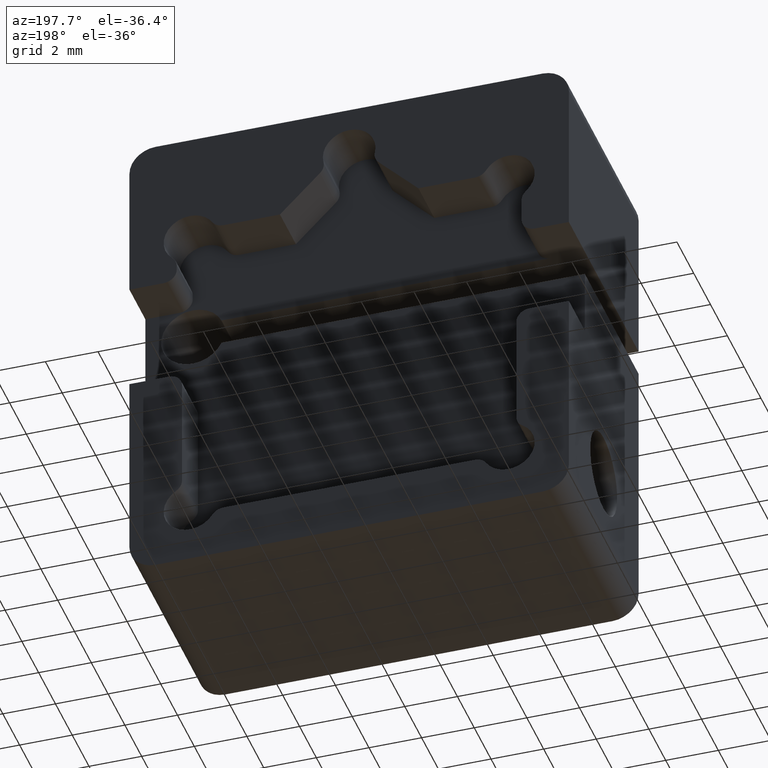
[diagram: clean part render]
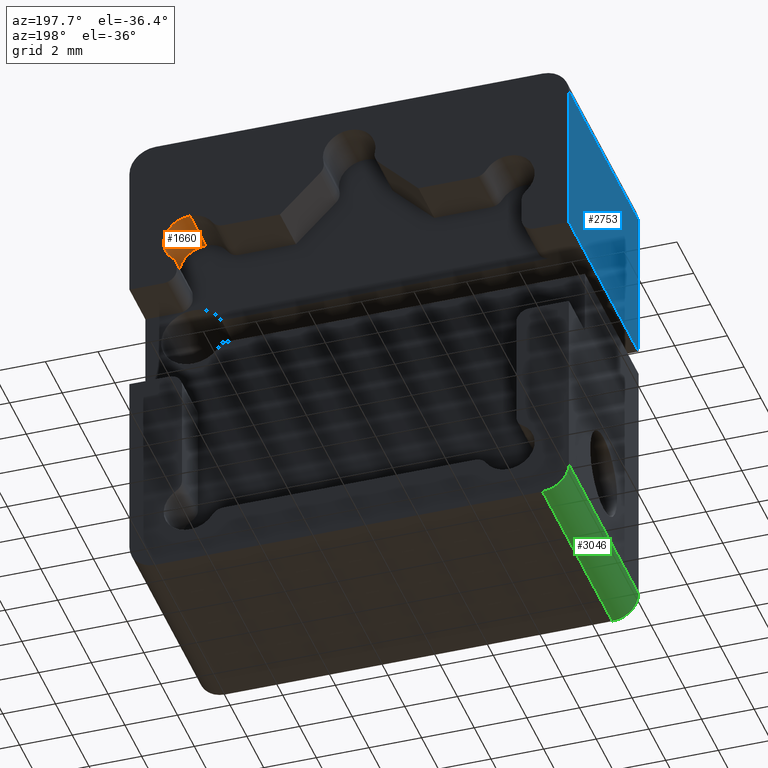
[diagram: same view with three faces highlighted in distinct colors, each labeled with its STEP entity id]
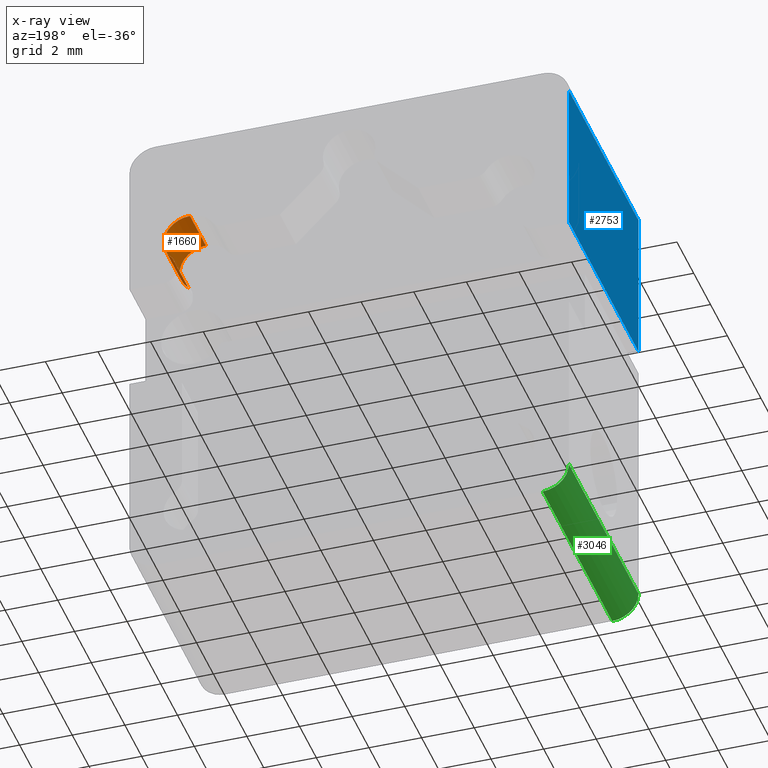
[diagram: x-ray of the same camera — body ghosted, the three highlighted faces saturated]
A machine part, auxiliary view with three faces highlighted in distinct colors.
The next image is the same camera in x-ray (body ghosted, the three faces saturated) — at least one of them is partly hidden behind the body in this view.
Their STEP definitions:

[orange] entity #1660 — the highlighted cylindrical surface (edge-blend (fillet) strip) has radius 1 mm, axis along (0, 1, 0).
#40 = DIRECTION ( 'NONE',  ( -0.000000000000000000, -1.000000000000000000, -0.000000000000000000 ) ) ;
#119 = CARTESIAN_POINT ( 'NONE',  ( 6.050000000000002487, 3.571572875253809620, 5.999999999999997335 ) ) ;
#208 = VERTEX_POINT ( 'NONE', #776 ) ;
#221 = EDGE_CURVE ( 'NONE', #208, #2995, #2944, .T. ) ;
#237 = CARTESIAN_POINT ( 'NONE',  ( 6.050000000000002487, 3.571572875253809620, 4.999999999999997335 ) ) ;
#253 = CYLINDRICAL_SURFACE ( 'NONE', #1685, 1.000000000000000000 ) ;
#311 = AXIS2_PLACEMENT_3D ( 'NONE', #1224, #40, #2606 ) ;
#324 = DIRECTION ( 'NONE',  ( 0.000000000000000000, 1.000000000000000000, 0.000000000000000000 ) ) ;
#326 = ORIENTED_EDGE ( 'NONE', *, *, #466, .T. ) ;
#340 = ORIENTED_EDGE ( 'NONE', *, *, #221, .T. ) ;
#466 = EDGE_CURVE ( 'NONE', #2995, #1032, #2492, .T. ) ;
#486 = DIRECTION ( 'NONE',  ( -0.000000000000000000, 1.000000000000000000, -0.000000000000000000 ) ) ;
#556 = CARTESIAN_POINT ( 'NONE',  ( 6.050000000000002487, 6.400000000000000355, 5.999999999999997335 ) ) ;
#709 = VECTOR ( 'NONE', #1758, 1000.000000000000000 ) ;
#776 = CARTESIAN_POINT ( 'NONE',  ( 6.716666666666666785, 8.300000000000000711, 4.254644007500066216 ) ) ;
#922 = EDGE_CURVE ( 'NONE', #1748, #208, #2042, .T. ) ;
#971 = FACE_OUTER_BOUND ( 'NONE', #1280, .T. ) ;
#1032 = VERTEX_POINT ( 'NONE', #556 ) ;
#1089 = CARTESIAN_POINT ( 'NONE',  ( 6.716666666666666785, 6.400000000000000355, 4.254644007500066216 ) ) ;
#1224 = CARTESIAN_POINT ( 'NONE',  ( 6.050000000000002487, 6.400000000000000355, 4.999999999999997335 ) ) ;
#1280 = EDGE_LOOP ( 'NONE', ( #326, #1393, #3059, #340 ) ) ;
#1292 = LINE ( 'NONE', #119, #1994 ) ;
#1393 = ORIENTED_EDGE ( 'NONE', *, *, #2357, .T. ) ;
#1487 = AXIS2_PLACEMENT_3D ( 'NONE', #2249, #324, #1958 ) ;
#1654 = CARTESIAN_POINT ( 'NONE',  ( 6.050000000000002487, 8.300000000000000711, 5.999999999999997335 ) ) ;
#1660 = ADVANCED_FACE ( 'NONE', ( #971 ), #253, .F. ) ;
#1685 = AXIS2_PLACEMENT_3D ( 'NONE', #237, #486, #2115 ) ;
#1748 = VERTEX_POINT ( 'NONE', #1654 ) ;
#1758 = DIRECTION ( 'NONE',  ( 0.000000000000000000, -1.000000000000000000, 0.000000000000000000 ) ) ;
#1958 = DIRECTION ( 'NONE',  ( 0.000000000000000000, 0.000000000000000000, 1.000000000000000000 ) ) ;
#1994 = VECTOR ( 'NONE', #2803, 1000.000000000000000 ) ;
#2042 = CIRCLE ( 'NONE', #1487, 1.000000000000000000 ) ;
#2115 = DIRECTION ( 'NONE',  ( 0.000000000000000000, 0.000000000000000000, 1.000000000000000000 ) ) ;
#2249 = CARTESIAN_POINT ( 'NONE',  ( 6.050000000000002487, 8.300000000000000711, 4.999999999999997335 ) ) ;
#2357 = EDGE_CURVE ( 'NONE', #1032, #1748, #1292, .T. ) ;
#2492 = CIRCLE ( 'NONE', #311, 1.000000000000000000 ) ;
#2606 = DIRECTION ( 'NONE',  ( 0.000000000000000000, 0.000000000000000000, 1.000000000000000000 ) ) ;
#2695 = CARTESIAN_POINT ( 'NONE',  ( 6.716666666666666785, 3.571572875253809620, 4.254644007500066216 ) ) ;
#2803 = DIRECTION ( 'NONE',  ( -0.000000000000000000, 1.000000000000000000, -0.000000000000000000 ) ) ;
#2944 = LINE ( 'NONE', #2695, #709 ) ;
#2995 = VERTEX_POINT ( 'NONE', #1089 ) ;
#3059 = ORIENTED_EDGE ( 'NONE', *, *, #922, .T. ) ;

[blue] entity #2753 — the highlighted planar face has unit normal (1, 0, -0).
#59 = ORIENTED_EDGE ( 'NONE', *, *, #2719, .T. ) ;
#162 = VERTEX_POINT ( 'NONE', #1281 ) ;
#314 = DIRECTION ( 'NONE',  ( 1.845450506358305325E-16, 0.000000000000000000, 1.000000000000000000 ) ) ;
#336 = DIRECTION ( 'NONE',  ( 1.845450506358305325E-16, 0.000000000000000000, 1.000000000000000000 ) ) ;
#344 = DIRECTION ( 'NONE',  ( -1.845450506358305818E-16, 0.000000000000000000, -1.000000000000000000 ) ) ;
#511 = ORIENTED_EDGE ( 'NONE', *, *, #1362, .F. ) ;
#560 = CARTESIAN_POINT ( 'NONE',  ( -8.349999999999999645, 8.300000000000000711, -9.399999999999996803 ) ) ;
#748 = ORIENTED_EDGE ( 'NONE', *, *, #2030, .T. ) ;
#767 = CARTESIAN_POINT ( 'NONE',  ( -8.349999999999999645, 0.000000000000000000, -9.399999999999996803 ) ) ;
#773 = LINE ( 'NONE', #2011, #2891 ) ;
#884 = CARTESIAN_POINT ( 'NONE',  ( -8.349999999999996092, 0.000000000000000000, 8.400000000000005684 ) ) ;
#915 = CARTESIAN_POINT ( 'NONE',  ( -8.349999999999996092, 8.300000000000000711, 8.400000000000005684 ) ) ;
#991 = ORIENTED_EDGE ( 'NONE', *, *, #2467, .F. ) ;
#1120 = LINE ( 'NONE', #915, #2774 ) ;
#1127 = CARTESIAN_POINT ( 'NONE',  ( -8.349999999999999645, 0.000000000000000000, 2.500000000000003109 ) ) ;
#1132 = AXIS2_PLACEMENT_3D ( 'NONE', #560, #2951, #344 ) ;
#1161 = LINE ( 'NONE', #1127, #2135 ) ;
#1281 = CARTESIAN_POINT ( 'NONE',  ( -8.349999999999999645, 8.300000000000000711, 2.500000000000003109 ) ) ;
#1322 = LINE ( 'NONE', #767, #2619 ) ;
#1362 = EDGE_CURVE ( 'NONE', #162, #1617, #773, .T. ) ;
#1617 = VERTEX_POINT ( 'NONE', #2073 ) ;
#1843 = DIRECTION ( 'NONE',  ( -0.000000000000000000, 1.000000000000000000, -0.000000000000000000 ) ) ;
#2005 = FACE_OUTER_BOUND ( 'NONE', #2610, .T. ) ;
#2011 = CARTESIAN_POINT ( 'NONE',  ( -8.349999999999999645, 8.300000000000000711, -9.399999999999996803 ) ) ;
#2030 = EDGE_CURVE ( 'NONE', #2034, #1617, #1120, .T. ) ;
#2034 = VERTEX_POINT ( 'NONE', #884 ) ;
#2073 = CARTESIAN_POINT ( 'NONE',  ( -8.349999999999996092, 8.300000000000000711, 8.400000000000005684 ) ) ;
#2074 = DIRECTION ( 'NONE',  ( -0.000000000000000000, 1.000000000000000000, -0.000000000000000000 ) ) ;
#2135 = VECTOR ( 'NONE', #1843, 1000.000000000000000 ) ;
#2467 = EDGE_CURVE ( 'NONE', #2550, #162, #1161, .T. ) ;
#2550 = VERTEX_POINT ( 'NONE', #2589 ) ;
#2589 = CARTESIAN_POINT ( 'NONE',  ( -8.349999999999999645, 0.000000000000000000, 2.500000000000003109 ) ) ;
#2610 = EDGE_LOOP ( 'NONE', ( #59, #748, #511, #991 ) ) ;
#2619 = VECTOR ( 'NONE', #314, 1000.000000000000000 ) ;
#2719 = EDGE_CURVE ( 'NONE', #2550, #2034, #1322, .T. ) ;
#2753 = ADVANCED_FACE ( 'NONE', ( #2005 ), #2935, .F. ) ;
#2774 = VECTOR ( 'NONE', #2074, 1000.000000000000000 ) ;
#2891 = VECTOR ( 'NONE', #336, 1000.000000000000000 ) ;
#2935 = PLANE ( 'NONE',  #1132 ) ;
#2951 = DIRECTION ( 'NONE',  ( 1.000000000000000000, 0.000000000000000000, -1.845450506358305818E-16 ) ) ;

[green] entity #3046 — the highlighted cylindrical surface (edge-blend (fillet) strip) has radius 1 mm, axis along (0, -1, 0).
#19 = VERTEX_POINT ( 'NONE', #1463 ) ;
#226 = DIRECTION ( 'NONE',  ( -0.000000000000000000, -1.000000000000000000, -0.000000000000000000 ) ) ;
#353 = CYLINDRICAL_SURFACE ( 'NONE', #2621, 1.000000000000000888 ) ;
#504 = EDGE_CURVE ( 'NONE', #2200, #19, #2117, .T. ) ;
#518 = EDGE_CURVE ( 'NONE', #1389, #2200, #2900, .T. ) ;
#537 = LINE ( 'NONE', #2195, #1638 ) ;
#554 = DIRECTION ( 'NONE',  ( 0.000000000000000000, 0.000000000000000000, -1.000000000000000000 ) ) ;
#611 = CIRCLE ( 'NONE', #2018, 1.000000000000000000 ) ;
#659 = EDGE_CURVE ( 'NONE', #19, #1347, #611, .T. ) ;
#724 = CARTESIAN_POINT ( 'NONE',  ( -7.349999999999999645, 8.300000000000000711, -9.399999999999996803 ) ) ;
#732 = ORIENTED_EDGE ( 'NONE', *, *, #518, .F. ) ;
#809 = FACE_OUTER_BOUND ( 'NONE', #2890, .T. ) ;
#824 = ORIENTED_EDGE ( 'NONE', *, *, #659, .F. ) ;
#847 = ORIENTED_EDGE ( 'NONE', *, *, #504, .F. ) ;
#1023 = DIRECTION ( 'NONE',  ( 0.000000000000000000, 1.000000000000000000, 0.000000000000000000 ) ) ;
#1211 = CARTESIAN_POINT ( 'NONE',  ( -7.349999999999999645, 0.000000000000000000, -8.399999999999998579 ) ) ;
#1293 = DIRECTION ( 'NONE',  ( 0.000000000000000000, 0.000000000000000000, 1.000000000000000000 ) ) ;
#1316 = CARTESIAN_POINT ( 'NONE',  ( -7.349999999999999645, 8.300000000000000711, -8.399999999999998579 ) ) ;
#1347 = VERTEX_POINT ( 'NONE', #1671 ) ;
#1384 = EDGE_CURVE ( 'NONE', #1347, #1389, #537, .T. ) ;
#1389 = VERTEX_POINT ( 'NONE', #2724 ) ;
#1447 = DIRECTION ( 'NONE',  ( 0.000000000000000000, 0.000000000000000000, 1.000000000000000000 ) ) ;
#1463 = CARTESIAN_POINT ( 'NONE',  ( -7.349999999999999645, 8.300000000000000711, -9.399999999999996803 ) ) ;
#1636 = ORIENTED_EDGE ( 'NONE', *, *, #1384, .F. ) ;
#1638 = VECTOR ( 'NONE', #2956, 1000.000000000000000 ) ;
#1671 = CARTESIAN_POINT ( 'NONE',  ( -8.349999999999999645, 8.300000000000000711, -8.399999999999998579 ) ) ;
#1939 = DIRECTION ( 'NONE',  ( -0.000000000000000000, 1.000000000000000000, -0.000000000000000000 ) ) ;
#1998 = DIRECTION ( 'NONE',  ( 0.000000000000000000, -1.000000000000000000, 0.000000000000000000 ) ) ;
#2018 = AXIS2_PLACEMENT_3D ( 'NONE', #2923, #1023, #1293 ) ;
#2062 = VECTOR ( 'NONE', #1939, 1000.000000000000000 ) ;
#2117 = LINE ( 'NONE', #724, #2062 ) ;
#2155 = CARTESIAN_POINT ( 'NONE',  ( -7.349999999999999645, 0.000000000000000000, -9.399999999999996803 ) ) ;
#2195 = CARTESIAN_POINT ( 'NONE',  ( -8.349999999999999645, 8.300000000000000711, -8.399999999999998579 ) ) ;
#2200 = VERTEX_POINT ( 'NONE', #2155 ) ;
#2386 = AXIS2_PLACEMENT_3D ( 'NONE', #1211, #226, #1447 ) ;
#2621 = AXIS2_PLACEMENT_3D ( 'NONE', #1316, #1998, #554 ) ;
#2724 = CARTESIAN_POINT ( 'NONE',  ( -8.349999999999999645, 0.000000000000000000, -8.399999999999998579 ) ) ;
#2890 = EDGE_LOOP ( 'NONE', ( #824, #847, #732, #1636 ) ) ;
#2900 = CIRCLE ( 'NONE', #2386, 1.000000000000000000 ) ;
#2923 = CARTESIAN_POINT ( 'NONE',  ( -7.349999999999999645, 8.300000000000000711, -8.399999999999998579 ) ) ;
#2956 = DIRECTION ( 'NONE',  ( 0.000000000000000000, -1.000000000000000000, 0.000000000000000000 ) ) ;
#3046 = ADVANCED_FACE ( 'NONE', ( #809 ), #353, .T. ) ;